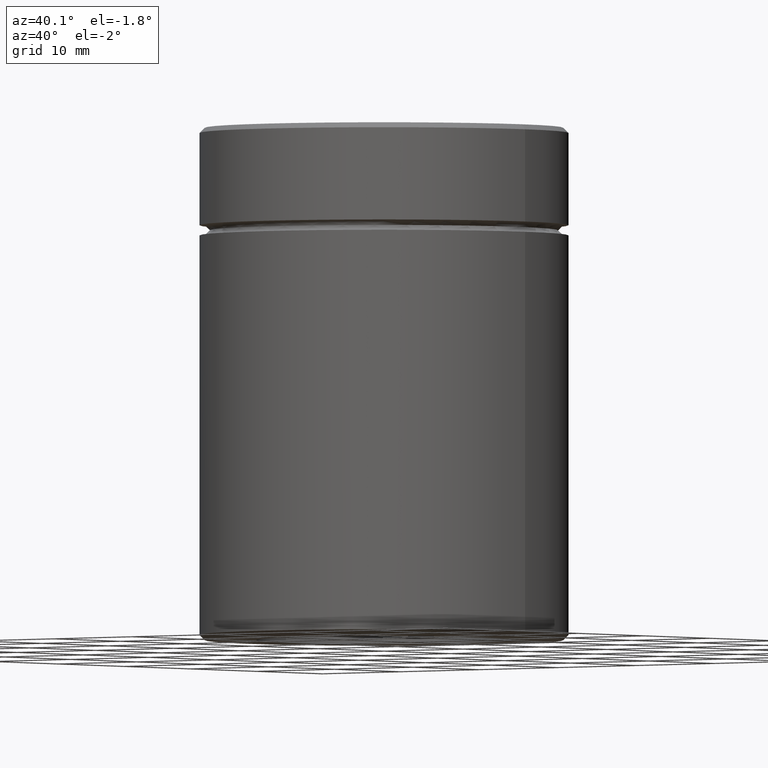
[diagram: clean part render]
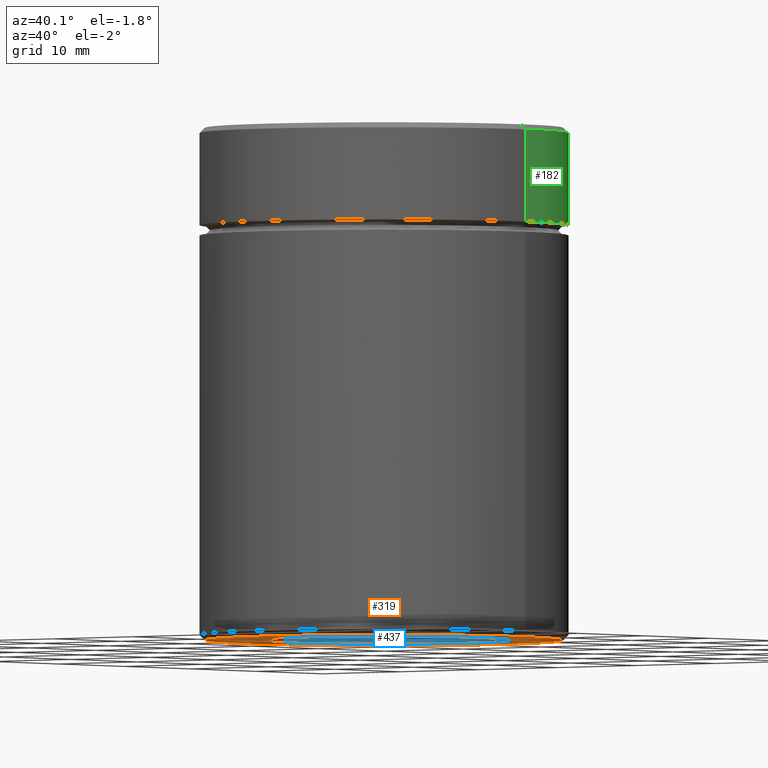
[diagram: same view with three faces highlighted in distinct colors, each labeled with its STEP entity id]
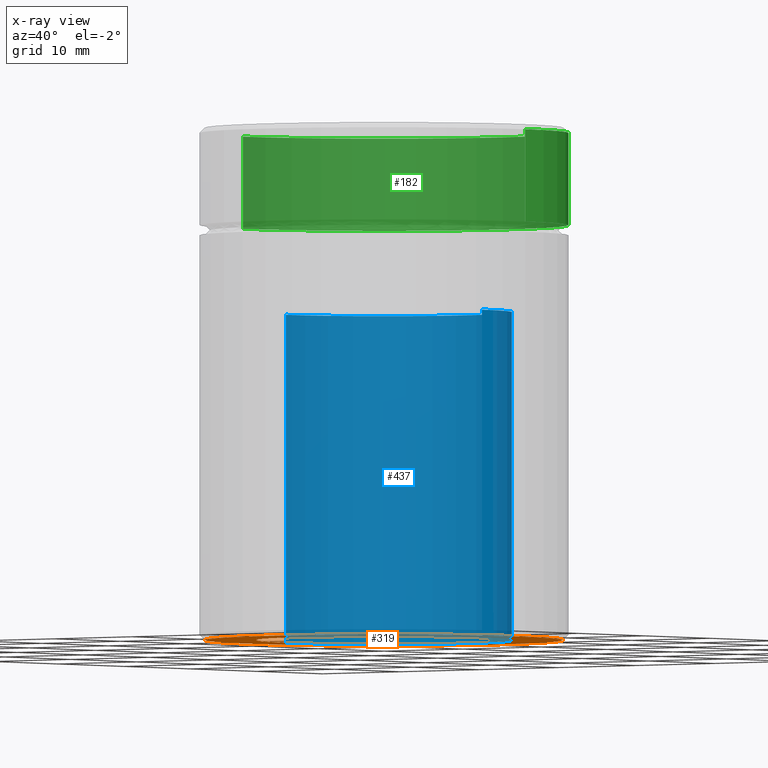
[diagram: x-ray of the same camera — body ghosted, the three highlighted faces saturated]
A machine part, auxiliary view with three faces highlighted in distinct colors.
The next image is the same camera in x-ray (body ghosted, the three faces saturated) — at least one of them is partly hidden behind the body in this view.
Their STEP definitions:

[orange] entity #319 — the highlighted planar face has unit normal (0, 0, -1).
#31 = CIRCLE ( 'NONE', #242, 17.50000000000000000 ) ;
#34 = EDGE_LOOP ( 'NONE', ( #224, #158 ) ) ;
#36 = EDGE_CURVE ( 'NONE', #249, #157, #271, .T. ) ;
#74 = CARTESIAN_POINT ( 'NONE',  ( -17.50000000000000000, 2.173748068486551641E-15, -50.00000000000000000 ) ) ;
#79 = DIRECTION ( 'NONE',  ( 0.000000000000000000, 0.000000000000000000, -1.000000000000000000 ) ) ;
#80 = CARTESIAN_POINT ( 'NONE',  ( 17.50000000000000000, 0.000000000000000000, -50.00000000000000000 ) ) ;
#117 = CARTESIAN_POINT ( 'NONE',  ( -12.50000000000000000, 0.000000000000000000, -50.00000000000000000 ) ) ;
#138 = CIRCLE ( 'NONE', #173, 12.50000000000000000 ) ;
#157 = VERTEX_POINT ( 'NONE', #462 ) ;
#158 = ORIENTED_EDGE ( 'NONE', *, *, #554, .F. ) ;
#173 = AXIS2_PLACEMENT_3D ( 'NONE', #384, #425, #483 ) ;
#177 = EDGE_CURVE ( 'NONE', #545, #314, #31, .T. ) ;
#180 = DIRECTION ( 'NONE',  ( -1.000000000000000000, 0.000000000000000000, 0.000000000000000000 ) ) ;
#222 = CIRCLE ( 'NONE', #568, 17.50000000000000000 ) ;
#223 = DIRECTION ( 'NONE',  ( 0.000000000000000000, 0.000000000000000000, -1.000000000000000000 ) ) ;
#224 = ORIENTED_EDGE ( 'NONE', *, *, #36, .F. ) ;
#242 = AXIS2_PLACEMENT_3D ( 'NONE', #331, #298, #245 ) ;
#245 = DIRECTION ( 'NONE',  ( -1.000000000000000000, 0.000000000000000000, 0.000000000000000000 ) ) ;
#249 = VERTEX_POINT ( 'NONE', #117 ) ;
#271 = CIRCLE ( 'NONE', #308, 12.50000000000000000 ) ;
#298 = DIRECTION ( 'NONE',  ( 0.000000000000000000, 0.000000000000000000, -1.000000000000000000 ) ) ;
#308 = AXIS2_PLACEMENT_3D ( 'NONE', #317, #223, #180 ) ;
#314 = VERTEX_POINT ( 'NONE', #74 ) ;
#317 = CARTESIAN_POINT ( 'NONE',  ( 0.000000000000000000, 0.000000000000000000, -50.00000000000000000 ) ) ;
#319 = ADVANCED_FACE ( 'NONE', ( #548, #544 ), #345, .T. ) ;
#325 = EDGE_LOOP ( 'NONE', ( #500, #340 ) ) ;
#331 = CARTESIAN_POINT ( 'NONE',  ( 0.000000000000000000, 0.000000000000000000, -50.00000000000000000 ) ) ;
#340 = ORIENTED_EDGE ( 'NONE', *, *, #547, .T. ) ;
#345 = PLANE ( 'NONE',  #558 ) ;
#350 = DIRECTION ( 'NONE',  ( 0.000000000000000000, 0.000000000000000000, -1.000000000000000000 ) ) ;
#384 = CARTESIAN_POINT ( 'NONE',  ( 0.000000000000000000, 0.000000000000000000, -50.00000000000000000 ) ) ;
#389 = CARTESIAN_POINT ( 'NONE',  ( 0.000000000000000000, 0.000000000000000000, -50.00000000000000000 ) ) ;
#425 = DIRECTION ( 'NONE',  ( 0.000000000000000000, 0.000000000000000000, -1.000000000000000000 ) ) ;
#462 = CARTESIAN_POINT ( 'NONE',  ( 12.50000000000000000, 1.530808498934191521E-15, -50.00000000000000000 ) ) ;
#472 = DIRECTION ( 'NONE',  ( -1.000000000000000000, 0.000000000000000000, -0.000000000000000000 ) ) ;
#479 = CARTESIAN_POINT ( 'NONE',  ( 0.000000000000000000, 18.00000000000000000, -50.00000000000000000 ) ) ;
#481 = DIRECTION ( 'NONE',  ( -1.000000000000000000, 0.000000000000000000, 0.000000000000000000 ) ) ;
#483 = DIRECTION ( 'NONE',  ( -1.000000000000000000, 0.000000000000000000, 0.000000000000000000 ) ) ;
#500 = ORIENTED_EDGE ( 'NONE', *, *, #177, .T. ) ;
#544 = FACE_BOUND ( 'NONE', #34, .T. ) ;
#545 = VERTEX_POINT ( 'NONE', #80 ) ;
#547 = EDGE_CURVE ( 'NONE', #314, #545, #222, .T. ) ;
#548 = FACE_OUTER_BOUND ( 'NONE', #325, .T. ) ;
#554 = EDGE_CURVE ( 'NONE', #157, #249, #138, .T. ) ;
#558 = AXIS2_PLACEMENT_3D ( 'NONE', #479, #79, #472 ) ;
#568 = AXIS2_PLACEMENT_3D ( 'NONE', #389, #350, #481 ) ;

[blue] entity #437 — the highlighted cylindrical surface (partial cylindrical patch) has radius 12.5 mm, axis along (-0, -0, -1).
#13 = LINE ( 'NONE', #50, #368 ) ;
#19 = CIRCLE ( 'NONE', #533, 12.50000000000000000 ) ;
#20 = AXIS2_PLACEMENT_3D ( 'NONE', #174, #436, #217 ) ;
#36 = EDGE_CURVE ( 'NONE', #249, #157, #271, .T. ) ;
#49 = ORIENTED_EDGE ( 'NONE', *, *, #112, .T. ) ;
#50 = CARTESIAN_POINT ( 'NONE',  ( -12.50000000000000000, 0.000000000000000000, -18.00000000000000355 ) ) ;
#72 = VERTEX_POINT ( 'NONE', #356 ) ;
#112 = EDGE_CURVE ( 'NONE', #444, #249, #13, .T. ) ;
#117 = CARTESIAN_POINT ( 'NONE',  ( -12.50000000000000000, 0.000000000000000000, -50.00000000000000000 ) ) ;
#157 = VERTEX_POINT ( 'NONE', #462 ) ;
#174 = CARTESIAN_POINT ( 'NONE',  ( 0.000000000000000000, 0.000000000000000000, -18.00000000000000355 ) ) ;
#180 = DIRECTION ( 'NONE',  ( -1.000000000000000000, 0.000000000000000000, 0.000000000000000000 ) ) ;
#217 = DIRECTION ( 'NONE',  ( -1.000000000000000000, 0.000000000000000000, 0.000000000000000000 ) ) ;
#223 = DIRECTION ( 'NONE',  ( 0.000000000000000000, 0.000000000000000000, -1.000000000000000000 ) ) ;
#249 = VERTEX_POINT ( 'NONE', #117 ) ;
#255 = CARTESIAN_POINT ( 'NONE',  ( 0.000000000000000000, 0.000000000000000000, -18.00000000000000355 ) ) ;
#262 = FACE_OUTER_BOUND ( 'NONE', #555, .T. ) ;
#271 = CIRCLE ( 'NONE', #308, 12.50000000000000000 ) ;
#278 = EDGE_CURVE ( 'NONE', #72, #157, #521, .T. ) ;
#308 = AXIS2_PLACEMENT_3D ( 'NONE', #317, #223, #180 ) ;
#315 = DIRECTION ( 'NONE',  ( -0.000000000000000000, -0.000000000000000000, -1.000000000000000000 ) ) ;
#317 = CARTESIAN_POINT ( 'NONE',  ( 0.000000000000000000, 0.000000000000000000, -50.00000000000000000 ) ) ;
#356 = CARTESIAN_POINT ( 'NONE',  ( 12.50000000000000000, 1.530808498934191521E-15, -18.00000000000000355 ) ) ;
#359 = EDGE_CURVE ( 'NONE', #444, #72, #19, .T. ) ;
#368 = VECTOR ( 'NONE', #315, 1000.000000000000000 ) ;
#418 = ORIENTED_EDGE ( 'NONE', *, *, #36, .T. ) ;
#426 = DIRECTION ( 'NONE',  ( -1.000000000000000000, 0.000000000000000000, 0.000000000000000000 ) ) ;
#430 = CARTESIAN_POINT ( 'NONE',  ( 12.50000000000000000, 1.530808498934191521E-15, -18.00000000000000355 ) ) ;
#436 = DIRECTION ( 'NONE',  ( -0.000000000000000000, -0.000000000000000000, -1.000000000000000000 ) ) ;
#437 = ADVANCED_FACE ( 'NONE', ( #262 ), #486, .F. ) ;
#438 = CARTESIAN_POINT ( 'NONE',  ( -12.50000000000000000, 0.000000000000000000, -18.00000000000000355 ) ) ;
#444 = VERTEX_POINT ( 'NONE', #438 ) ;
#452 = ORIENTED_EDGE ( 'NONE', *, *, #359, .F. ) ;
#462 = CARTESIAN_POINT ( 'NONE',  ( 12.50000000000000000, 1.530808498934191521E-15, -50.00000000000000000 ) ) ;
#477 = DIRECTION ( 'NONE',  ( 0.000000000000000000, 0.000000000000000000, -1.000000000000000000 ) ) ;
#486 = CYLINDRICAL_SURFACE ( 'NONE', #20, 12.50000000000000000 ) ;
#496 = VECTOR ( 'NONE', #518, 1000.000000000000000 ) ;
#518 = DIRECTION ( 'NONE',  ( -0.000000000000000000, -0.000000000000000000, -1.000000000000000000 ) ) ;
#521 = LINE ( 'NONE', #430, #496 ) ;
#533 = AXIS2_PLACEMENT_3D ( 'NONE', #255, #477, #426 ) ;
#536 = ORIENTED_EDGE ( 'NONE', *, *, #278, .F. ) ;
#555 = EDGE_LOOP ( 'NONE', ( #536, #452, #49, #418 ) ) ;

[green] entity #182 — the highlighted cylindrical surface (partial cylindrical patch) has radius 18 mm, axis along (-0, -0, 1).
#8 = CIRCLE ( 'NONE', #537, 18.00000000000000000 ) ;
#56 = AXIS2_PLACEMENT_3D ( 'NONE', #275, #323, #363 ) ;
#68 = VERTEX_POINT ( 'NONE', #97 ) ;
#75 = EDGE_CURVE ( 'NONE', #293, #396, #393, .T. ) ;
#97 = CARTESIAN_POINT ( 'NONE',  ( -18.00000000000000000, 2.204364238465235428E-15, -0.5000000000000108802 ) ) ;
#98 = EDGE_CURVE ( 'NONE', #203, #68, #357, .T. ) ;
#133 = ORIENTED_EDGE ( 'NONE', *, *, #98, .T. ) ;
#142 = DIRECTION ( 'NONE',  ( 1.000000000000000000, 0.000000000000000000, 0.000000000000000000 ) ) ;
#182 = ADVANCED_FACE ( 'NONE', ( #250 ), #546, .T. ) ;
#188 = EDGE_LOOP ( 'NONE', ( #288, #133, #447, #535 ) ) ;
#203 = VERTEX_POINT ( 'NONE', #282 ) ;
#210 = CARTESIAN_POINT ( 'NONE',  ( -18.00000000000000000, 2.204364238465235428E-15, 0.000000000000000000 ) ) ;
#250 = FACE_OUTER_BOUND ( 'NONE', #188, .T. ) ;
#254 = CARTESIAN_POINT ( 'NONE',  ( 18.00000000000000000, 0.000000000000000000, -0.5000000000000108802 ) ) ;
#256 = EDGE_CURVE ( 'NONE', #293, #203, #8, .T. ) ;
#275 = CARTESIAN_POINT ( 'NONE',  ( 0.000000000000000000, 0.000000000000000000, -0.5000000000000108802 ) ) ;
#282 = CARTESIAN_POINT ( 'NONE',  ( -18.00000000000000000, 2.204364238465235428E-15, -9.500000000000000000 ) ) ;
#288 = ORIENTED_EDGE ( 'NONE', *, *, #256, .T. ) ;
#289 = DIRECTION ( 'NONE',  ( -0.000000000000000000, -0.000000000000000000, 1.000000000000000000 ) ) ;
#292 = CIRCLE ( 'NONE', #56, 18.00000000000000000 ) ;
#293 = VERTEX_POINT ( 'NONE', #559 ) ;
#295 = DIRECTION ( 'NONE',  ( -0.000000000000000000, -0.000000000000000000, 1.000000000000000000 ) ) ;
#323 = DIRECTION ( 'NONE',  ( 0.000000000000000000, 0.000000000000000000, -1.000000000000000000 ) ) ;
#343 = CARTESIAN_POINT ( 'NONE',  ( 18.00000000000000000, 0.000000000000000000, 0.000000000000000000 ) ) ;
#357 = LINE ( 'NONE', #210, #513 ) ;
#363 = DIRECTION ( 'NONE',  ( 1.000000000000000000, 0.000000000000000000, 0.000000000000000000 ) ) ;
#380 = CARTESIAN_POINT ( 'NONE',  ( 0.000000000000000000, 0.000000000000000000, -9.500000000000000000 ) ) ;
#386 = AXIS2_PLACEMENT_3D ( 'NONE', #475, #289, #142 ) ;
#390 = VECTOR ( 'NONE', #457, 1000.000000000000000 ) ;
#393 = LINE ( 'NONE', #343, #390 ) ;
#396 = VERTEX_POINT ( 'NONE', #254 ) ;
#443 = DIRECTION ( 'NONE',  ( -0.000000000000000000, -0.000000000000000000, 1.000000000000000000 ) ) ;
#447 = ORIENTED_EDGE ( 'NONE', *, *, #459, .T. ) ;
#457 = DIRECTION ( 'NONE',  ( -0.000000000000000000, -0.000000000000000000, 1.000000000000000000 ) ) ;
#459 = EDGE_CURVE ( 'NONE', #68, #396, #292, .T. ) ;
#475 = CARTESIAN_POINT ( 'NONE',  ( 0.000000000000000000, 0.000000000000000000, 0.000000000000000000 ) ) ;
#513 = VECTOR ( 'NONE', #443, 1000.000000000000000 ) ;
#535 = ORIENTED_EDGE ( 'NONE', *, *, #75, .F. ) ;
#537 = AXIS2_PLACEMENT_3D ( 'NONE', #380, #295, #556 ) ;
#546 = CYLINDRICAL_SURFACE ( 'NONE', #386, 18.00000000000000000 ) ;
#556 = DIRECTION ( 'NONE',  ( 1.000000000000000000, 0.000000000000000000, 0.000000000000000000 ) ) ;
#559 = CARTESIAN_POINT ( 'NONE',  ( 18.00000000000000000, 0.000000000000000000, -9.500000000000000000 ) ) ;